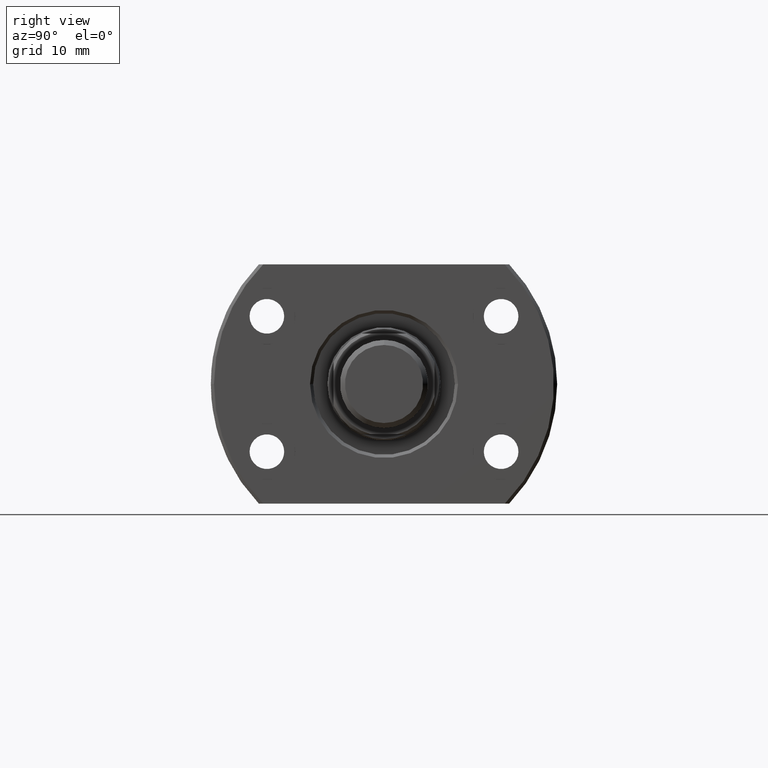
[diagram: clean part render]
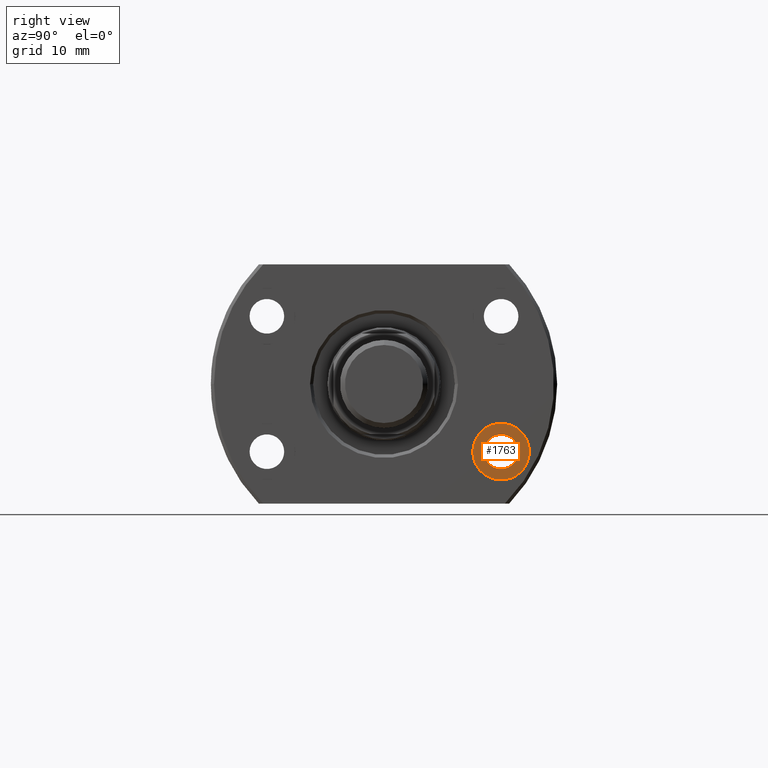
[diagram: same view with one face highlighted and labeled with its STEP entity id]
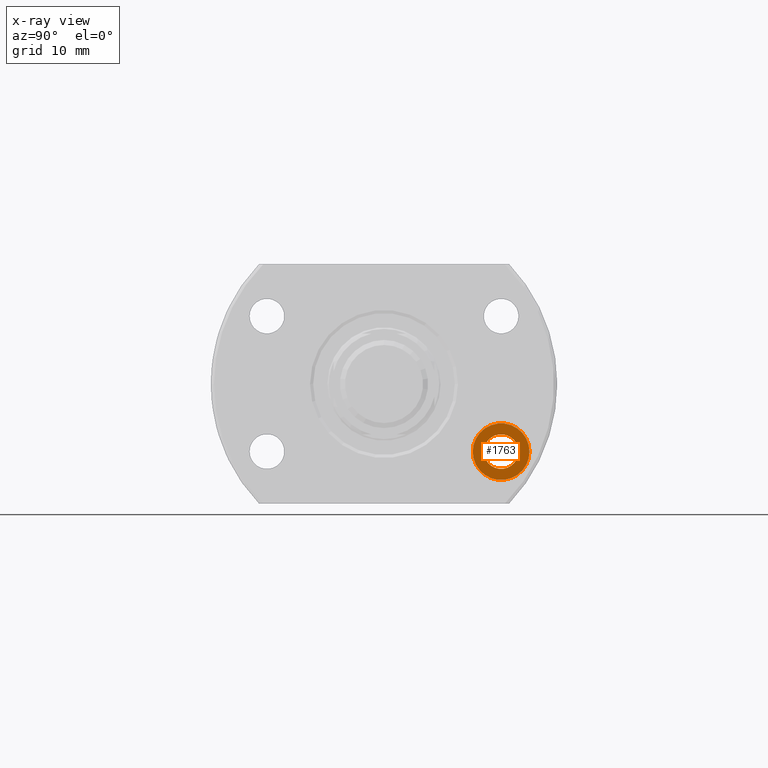
[diagram: x-ray of the same camera — body ghosted, the highlighted face saturated]
A machine part, right view. The second image highlights one B-rep face of the part: STEP entity #1763.
The next image is the same camera in x-ray: the body ghosted, the highlighted face saturated — about 0% of this face is hidden behind the body in this view.
In plain terms, the highlighted planar face has unit normal (1, -0, -0).
Its self-contained STEP definition (entity closure, byte-faithful):
#15 = EDGE_CURVE ( 'NONE', #1757, #1846, #2081, .T. ) ;
#69 = EDGE_CURVE ( 'NONE', #1306, #928, #3442, .T. ) ;
#80 = DIRECTION ( 'NONE',  ( 1.000000000000000000, -2.883293662278287419E-14, -3.155443620884046521E-30 ) ) ;
#232 = CIRCLE ( 'NONE', #1693, 2.749999999999999112 ) ;
#402 = DIRECTION ( 'NONE',  ( 2.883293662278287419E-14, 1.000000000000000000, 0.000000000000000000 ) ) ;
#588 = EDGE_CURVE ( 'NONE', #928, #1306, #3451, .T. ) ;
#726 = CARTESIAN_POINT ( 'NONE',  ( 21.00000000000054357, 18.59999999999939391, -10.75000000000000000 ) ) ;
#906 = CARTESIAN_POINT ( 'NONE',  ( 21.00000000000041211, 14.09999999999939391, -10.75000000000000000 ) ) ;
#928 = VERTEX_POINT ( 'NONE', #906 ) ;
#1037 = DIRECTION ( 'NONE',  ( 2.901719268906659886E-14, 1.000000000000000000, 0.000000000000000000 ) ) ;
#1123 = CARTESIAN_POINT ( 'NONE',  ( 21.00000000000054001, 18.59999999999939391, -10.75000000000000000 ) ) ;
#1306 = VERTEX_POINT ( 'NONE', #3356 ) ;
#1493 = AXIS2_PLACEMENT_3D ( 'NONE', #1123, #3381, #1981 ) ;
#1562 = CARTESIAN_POINT ( 'NONE',  ( 21.00000000000046185, 15.84999999999939568, -10.75000000000000000 ) ) ;
#1583 = DIRECTION ( 'NONE',  ( 2.852656382717415620E-14, 1.000000000000000000, 0.000000000000000000 ) ) ;
#1587 = FACE_OUTER_BOUND ( 'NONE', #1895, .T. ) ;
#1693 = AXIS2_PLACEMENT_3D ( 'NONE', #2457, #2643, #1037 ) ;
#1746 = AXIS2_PLACEMENT_3D ( 'NONE', #2974, #80, #1583 ) ;
#1757 = VERTEX_POINT ( 'NONE', #1562 ) ;
#1763 = ADVANCED_FACE ( 'NONE', ( #1849, #1587 ), #3220, .T. ) ;
#1843 = DIRECTION ( 'NONE',  ( 1.000000000000000000, -2.883293662278287419E-14, -3.155443620884046521E-30 ) ) ;
#1846 = VERTEX_POINT ( 'NONE', #2995 ) ;
#1849 = FACE_BOUND ( 'NONE', #2955, .T. ) ;
#1881 = DIRECTION ( 'NONE',  ( 2.901719268906659886E-14, 1.000000000000000000, 0.000000000000000000 ) ) ;
#1895 = EDGE_LOOP ( 'NONE', ( #3199, #3090 ) ) ;
#1981 = DIRECTION ( 'NONE',  ( 2.852656382717415620E-14, 1.000000000000000000, 0.000000000000000000 ) ) ;
#2081 = CIRCLE ( 'NONE', #2383, 2.749999999999999112 ) ;
#2297 = ORIENTED_EDGE ( 'NONE', *, *, #2319, .F. ) ;
#2319 = EDGE_CURVE ( 'NONE', #1846, #1757, #232, .T. ) ;
#2383 = AXIS2_PLACEMENT_3D ( 'NONE', #726, #1843, #1881 ) ;
#2398 = AXIS2_PLACEMENT_3D ( 'NONE', #2414, #2959, #402 ) ;
#2414 = CARTESIAN_POINT ( 'NONE',  ( 21.00000000000000355, -6.053171843620969921E-13, -8.361925595342724016E-29 ) ) ;
#2457 = CARTESIAN_POINT ( 'NONE',  ( 21.00000000000054357, 18.59999999999939391, -10.75000000000000000 ) ) ;
#2643 = DIRECTION ( 'NONE',  ( 1.000000000000000000, -2.883293662278287419E-14, -3.155443620884046521E-30 ) ) ;
#2955 = EDGE_LOOP ( 'NONE', ( #2297, #3108 ) ) ;
#2959 = DIRECTION ( 'NONE',  ( 1.000000000000000000, -2.883293662278287419E-14, -3.155443620884046521E-30 ) ) ;
#2974 = CARTESIAN_POINT ( 'NONE',  ( 21.00000000000054001, 18.59999999999939391, -10.75000000000000000 ) ) ;
#2995 = CARTESIAN_POINT ( 'NONE',  ( 21.00000000000062172, 21.34999999999939391, -10.75000000000000000 ) ) ;
#3090 = ORIENTED_EDGE ( 'NONE', *, *, #588, .T. ) ;
#3108 = ORIENTED_EDGE ( 'NONE', *, *, #15, .F. ) ;
#3199 = ORIENTED_EDGE ( 'NONE', *, *, #69, .T. ) ;
#3220 = PLANE ( 'NONE',  #2398 ) ;
#3356 = CARTESIAN_POINT ( 'NONE',  ( 21.00000000000066791, 23.09999999999939391, -10.75000000000000000 ) ) ;
#3381 = DIRECTION ( 'NONE',  ( 1.000000000000000000, -2.883293662278287419E-14, -3.155443620884046521E-30 ) ) ;
#3442 = CIRCLE ( 'NONE', #1493, 4.500000000000000888 ) ;
#3451 = CIRCLE ( 'NONE', #1746, 4.500000000000000888 ) ;